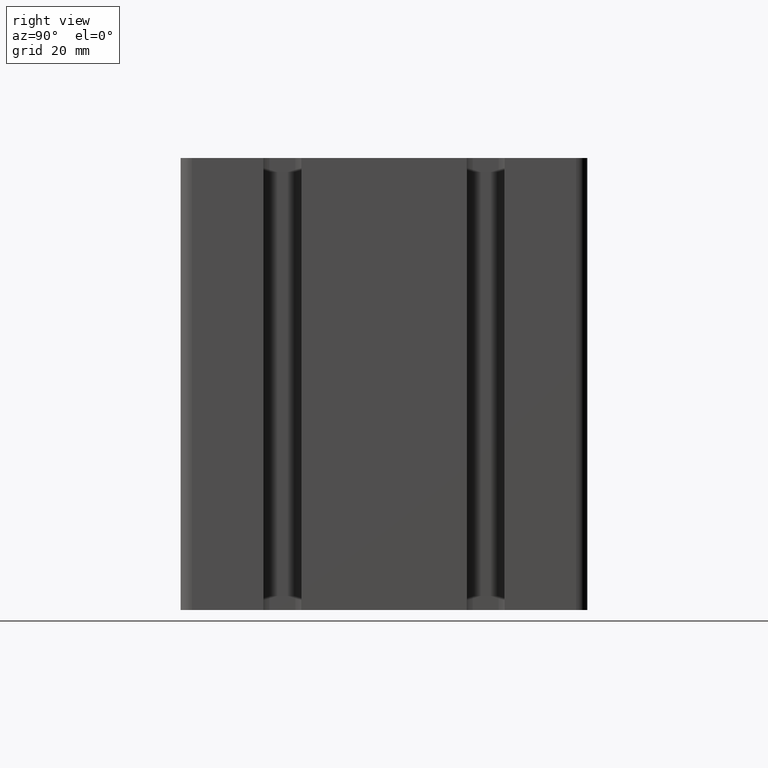
[diagram: clean part render]
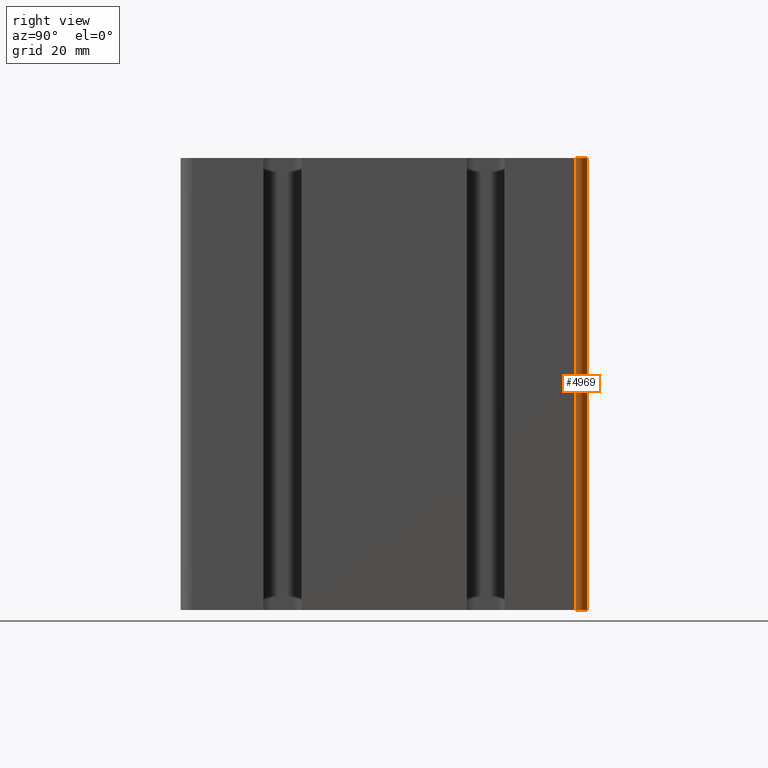
[diagram: same view with one face highlighted and labeled with its STEP entity id]
A machine part, right view. The second image highlights one B-rep face of the part: STEP entity #4969.
In plain terms, the highlighted cylindrical surface (edge-blend (fillet) strip) has radius 2.5 mm, axis along (0, 0, 1).
Its self-contained STEP definition (entity closure, byte-faithful):
#434=FACE_OUTER_BOUND('',#696,.T.);
#696=EDGE_LOOP('',(#4374,#4375,#4376,#4377));
#1225=LINE('',#8227,#1758);
#1237=LINE('',#8251,#1770);
#1758=VECTOR('',#6756,100.);
#1770=VECTOR('',#6776,100.);
#1967=CIRCLE('',#5399,2.50000000000001);
#1970=CIRCLE('',#5407,2.50000000000001);
#2448=VERTEX_POINT('',#8224);
#2449=VERTEX_POINT('',#8226);
#2456=VERTEX_POINT('',#8248);
#2457=VERTEX_POINT('',#8250);
#3153=EDGE_CURVE('',#2448,#2449,#1225,.T.);
#3165=EDGE_CURVE('',#2457,#2456,#1237,.T.);
#3173=EDGE_CURVE('',#2456,#2449,#1967,.T.);
#3179=EDGE_CURVE('',#2457,#2448,#1970,.T.);
#4374=ORIENTED_EDGE('',*,*,#3173,.T.);
#4375=ORIENTED_EDGE('',*,*,#3153,.F.);
#4376=ORIENTED_EDGE('',*,*,#3179,.F.);
#4377=ORIENTED_EDGE('',*,*,#3165,.T.);
#4727=CYLINDRICAL_SURFACE('',#5406,2.50000000000001);
#4969=ADVANCED_FACE('',(#434),#4727,.T.);
#5399=AXIS2_PLACEMENT_3D('',#8260,#6789,#6790);
#5406=AXIS2_PLACEMENT_3D('',#8270,#6806,#6807);
#5407=AXIS2_PLACEMENT_3D('',#8271,#6808,#6809);
#6756=DIRECTION('',(0.,0.,1.));
#6776=DIRECTION('',(0.,0.,1.));
#6789=DIRECTION('center_axis',(0.,0.,-1.));
#6790=DIRECTION('ref_axis',(-1.,0.,0.));
#6806=DIRECTION('center_axis',(0.,0.,1.));
#6807=DIRECTION('ref_axis',(-1.,0.,0.));
#6808=DIRECTION('center_axis',(0.,0.,-1.));
#6809=DIRECTION('ref_axis',(-1.,0.,0.));
#8224=CARTESIAN_POINT('',(45.,42.5,0.));
#8226=CARTESIAN_POINT('',(45.,42.5,100.));
#8227=CARTESIAN_POINT('',(45.,42.5,0.));
#8248=CARTESIAN_POINT('',(42.5,45.,100.));
#8250=CARTESIAN_POINT('',(42.5,45.,0.));
#8251=CARTESIAN_POINT('',(42.5,45.,0.));
#8260=CARTESIAN_POINT('Origin',(42.5,42.5,100.));
#8270=CARTESIAN_POINT('Origin',(42.5,42.5,0.));
#8271=CARTESIAN_POINT('Origin',(42.5,42.5,0.));